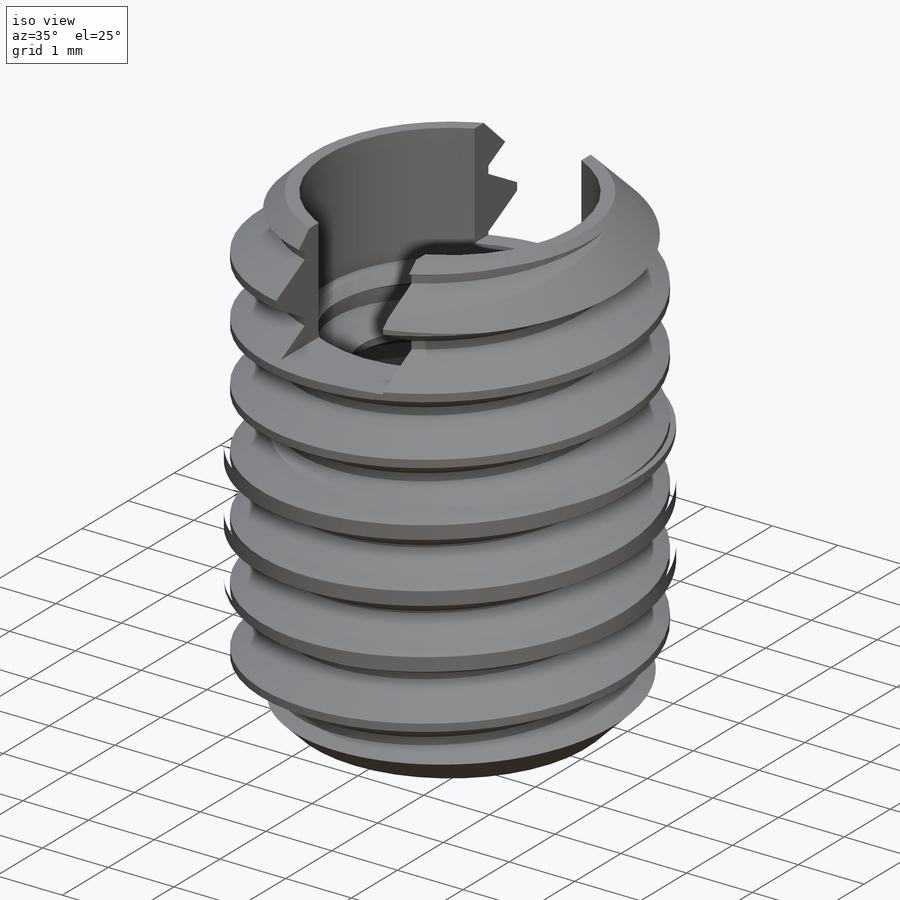
[diagram: iso view]
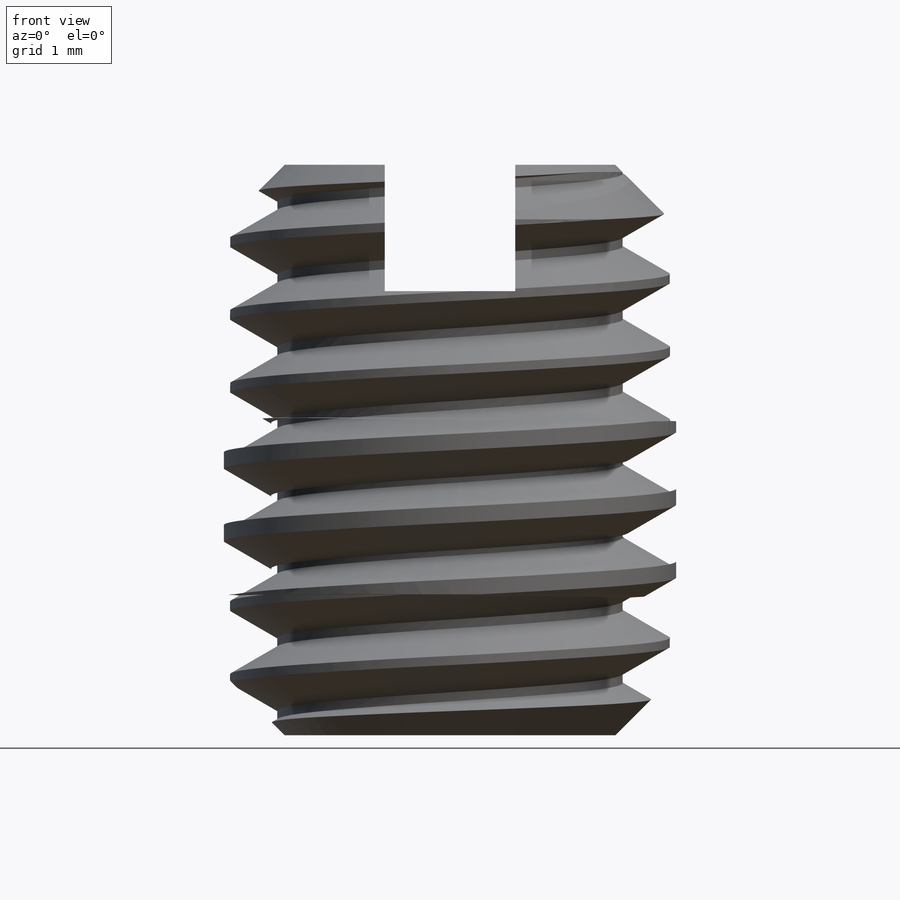
[diagram: front view]
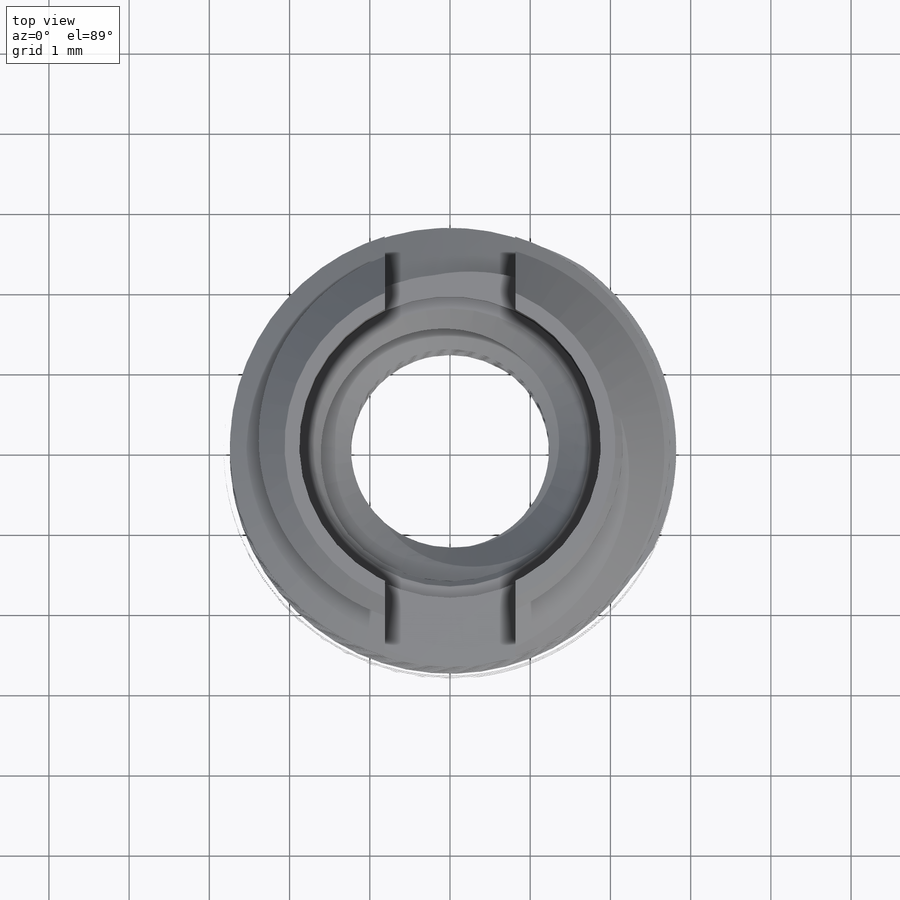
[diagram: top view]
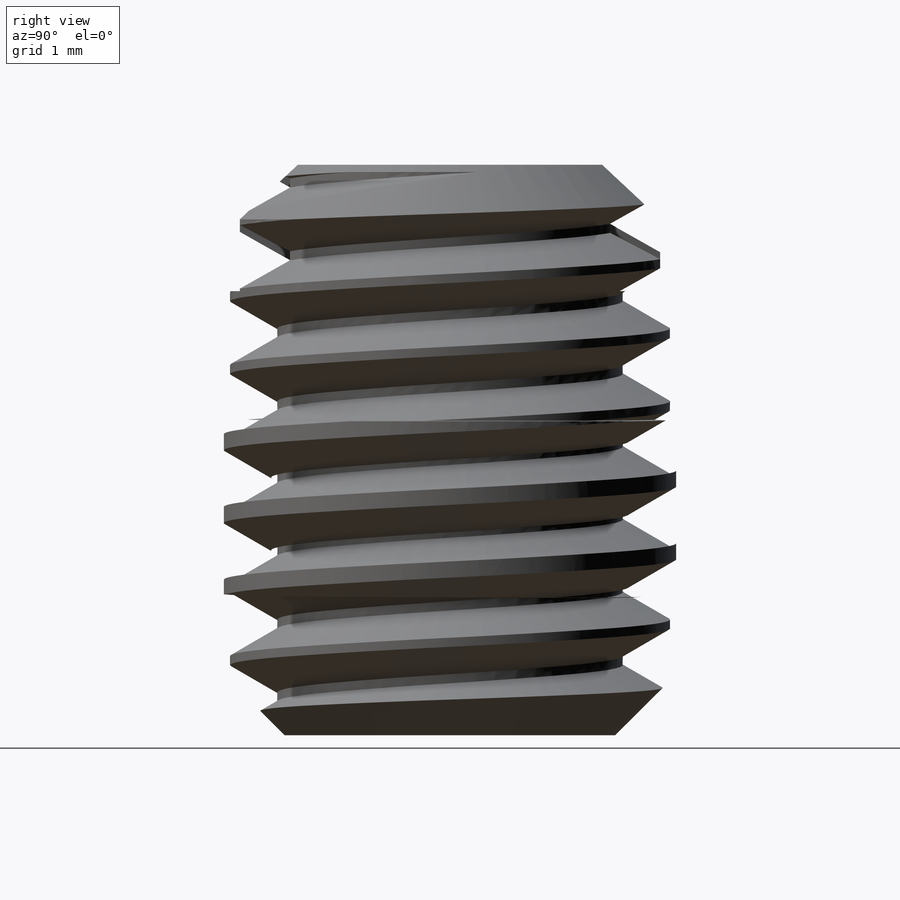
[diagram: right view]
SOLIDWORKS PART (.sldprt)
format: sldprt  version: not decoded by parser v0  size: 1,037,312 bytes
history: native  units: mm
features: sketch x11, cut_extrude x4, helix x2, chamfer x2, sweep x2, material x1, extrude x1 (+14 scaffold rows collapsed)
feature tree (37):
  scaffold x14  (default folders/planes/origin — collapsed)
  material  "Material <not specified>"
  sketch  "Sketch1"  dims[External Thread OD=5.4864mm]
  extrude  "Extrude1"  Depth=7.112mm Length=7.112mm
  sketch  "Sketch4"  dims[Internal Thread OD=3.5052mm D1=0.0mm]
  sketch  "Sketch2"  dims[A=3.7592mm]
  cut_extrude  "Extrude2"  Depth=1.778mm D=1.778mm
  helix  "Helix/Spiral1"  Pitch=7.90575mm Internal Thread Height=7.90575mm Internal Thread Pitch=0.79375mm
  sketch  "Sketch5"  dims[D1=~0.79375mm D2=~0.099219mm]
  sketch  "Sketch6"  dims[Thread OD=15.875mm]
  cut_extrude  "Extrude4"  [1 undecoded]
  chamfer  "Chamfer1"  Distance=0.496094mm Angle=45deg
  sweep  "Cut-Sweep1"
  sketch  "Sketch7"
  helix  "Helix/Spiral2"  Pitch=7.90575mm External Thread Height=7.90575mm External Thread Pitch=0.907143mm
  sketch  "Sketch8"  dims[c1.D1=~0.907143mm c1.D2=1.27mm c1.D3=~0.15875mm c1.D4=~0.846667mm c1.D5=~0.465174mm c2.D2=~0.113393mm c2.D3=~0.944899mm]
  chamfer  "Chamfer2"  Distance=0.680357mm Angle=45deg
  sweep  "Cut-Sweep2"
  sketch  "Sketch9"  dims[c1.D1=15.24mm c1.D2=~2.38125mm c2.D1=~4.27606mm c2.D3=~0.226786mm c2.D4=1.27mm c3.D1=0.0762mm]
  sketch  "Sketch10"  dims[D1=360.0deg]
  sketch  "Sketch11"  dims[D1=0.0mm]
  cut_extrude  "Cut-Extrude1"  [1 undecoded]
  sketch  "Sketch3"  dims[B=1.6256mm C=1.5748mm]
  cut_extrude  "Extrude3"  [1 undecoded]
decode coverage: 16 of 22 modeling features carry decoded parameters
note: ~ marks probable driven/reference dimensions
note: 3 parameter values undecoded
summary: no parameter record found for 3 features
note: suppression state not decoded; provenance and decode notes live in map.json
